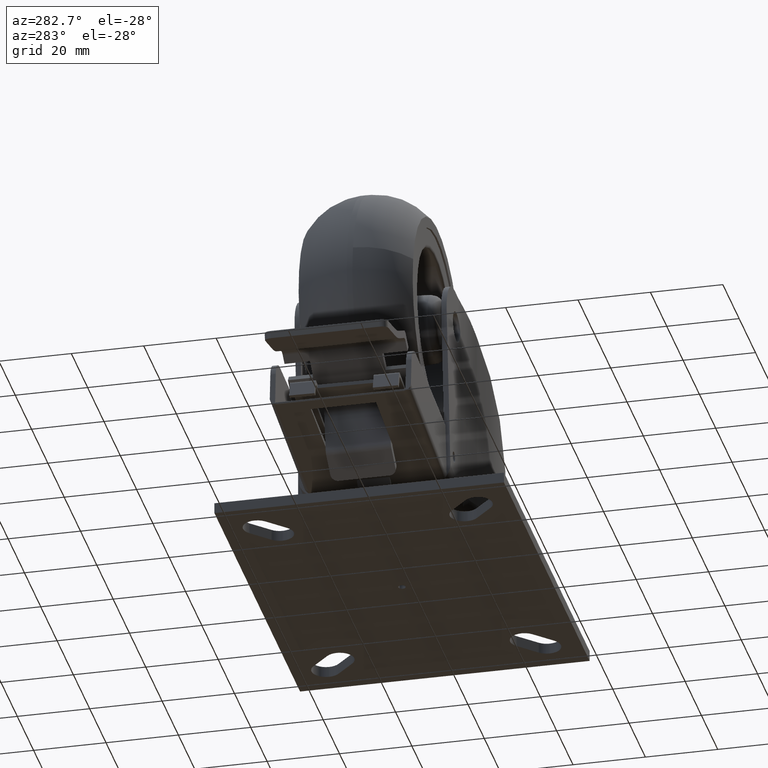
[diagram: clean part render]
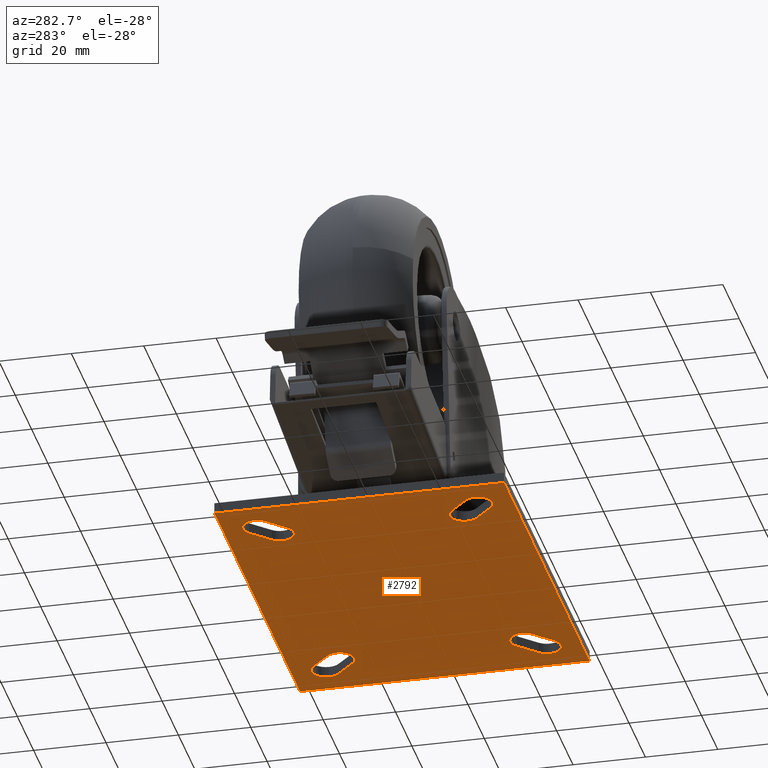
[diagram: same view with one face highlighted and labeled with its STEP entity id]
A machine part, auxiliary view. The second image highlights one B-rep face of the part: STEP entity #2792.
In plain terms, the highlighted planar face has unit normal (0, 0, -1).
Its self-contained STEP definition (entity closure, byte-faithful):
#2584 = EDGE_CURVE ( 'NONE', #2585, #2587, #7093, .T. ) ;
#2585 = VERTEX_POINT ( 'NONE', #7088 ) ;
#2587 = VERTEX_POINT ( 'NONE', #7087 ) ;
#2623 = EDGE_CURVE ( 'NONE', #2624, #2626, #7116, .T. ) ;
#2624 = VERTEX_POINT ( 'NONE', #7111 ) ;
#2626 = VERTEX_POINT ( 'NONE', #7110 ) ;
#2705 = EDGE_CURVE ( 'NONE', #2762, #2764, #7217, .T. ) ;
#2711 = EDGE_CURVE ( 'NONE', #2718, #2720, #7212, .T. ) ;
#2718 = VERTEX_POINT ( 'NONE', #7201 ) ;
#2720 = VERTEX_POINT ( 'NONE', #7200 ) ;
#2756 = EDGE_LOOP ( 'NONE', ( #2758, #2828, #2836, #2840, #2842 ) ) ;
#2758 = ORIENTED_EDGE ( 'NONE', *, *, #2973, .F. ) ;
#2762 = VERTEX_POINT ( 'NONE', #7236 ) ;
#2764 = VERTEX_POINT ( 'NONE', #7235 ) ;
#2792 = ADVANCED_FACE ( 'NONE', ( #7272, #7271, #7270, #7269, #7268, #7267 ), #7266, .T. ) ;
#2794 = EDGE_LOOP ( 'NONE', ( #2796, #2800 ) ) ;
#2796 = ORIENTED_EDGE ( 'NONE', *, *, #2798, .T. ) ;
#2798 = EDGE_CURVE ( 'NONE', #2587, #2585, #7257, .T. ) ;
#2800 = ORIENTED_EDGE ( 'NONE', *, *, #2584, .T. ) ;
#2804 = EDGE_CURVE ( 'NONE', #2806, #2808, #7320, .T. ) ;
#2806 = VERTEX_POINT ( 'NONE', #7315 ) ;
#2808 = VERTEX_POINT ( 'NONE', #7314 ) ;
#2828 = ORIENTED_EDGE ( 'NONE', *, *, #2829, .T. ) ;
#2829 = EDGE_CURVE ( 'NONE', #2977, #2831, #7297, .T. ) ;
#2831 = VERTEX_POINT ( 'NONE', #7293 ) ;
#2836 = ORIENTED_EDGE ( 'NONE', *, *, #2838, .F. ) ;
#2838 = EDGE_CURVE ( 'NONE', #2720, #2831, #7292, .T. ) ;
#2840 = ORIENTED_EDGE ( 'NONE', *, *, #2711, .F. ) ;
#2842 = ORIENTED_EDGE ( 'NONE', *, *, #2846, .T. ) ;
#2846 = EDGE_CURVE ( 'NONE', #2718, #2978, #7347, .T. ) ;
#2849 = EDGE_LOOP ( 'NONE', ( #2854, #2935, #2946, #2952, #2956 ) ) ;
#2854 = ORIENTED_EDGE ( 'NONE', *, *, #2858, .F. ) ;
#2858 = EDGE_CURVE ( 'NONE', #2925, #2929, #7336, .T. ) ;
#2862 = ORIENTED_EDGE ( 'NONE', *, *, #2863, .F. ) ;
#2863 = EDGE_CURVE ( 'NONE', #2866, #2868, #7331, .T. ) ;
#2866 = VERTEX_POINT ( 'NONE', #7326 ) ;
#2868 = VERTEX_POINT ( 'NONE', #7325 ) ;
#2873 = ORIENTED_EDGE ( 'NONE', *, *, #2875, .T. ) ;
#2875 = EDGE_CURVE ( 'NONE', #2866, #2877, #7324, .T. ) ;
#2877 = VERTEX_POINT ( 'NONE', #7378 ) ;
#2879 = ORIENTED_EDGE ( 'NONE', *, *, #2882, .F. ) ;
#2882 = EDGE_CURVE ( 'NONE', #2626, #2877, #7376, .T. ) ;
#2888 = ORIENTED_EDGE ( 'NONE', *, *, #2623, .F. ) ;
#2894 = ORIENTED_EDGE ( 'NONE', *, *, #2895, .T. ) ;
#2895 = EDGE_CURVE ( 'NONE', #2624, #2868, #7361, .T. ) ;
#2896 = VERTEX_POINT ( 'NONE', #7357 ) ;
#2899 = ORIENTED_EDGE ( 'NONE', *, *, #2902, .F. ) ;
#2902 = EDGE_CURVE ( 'NONE', #2764, #2896, #7356, .T. ) ;
#2906 = EDGE_LOOP ( 'NONE', ( #2909, #2991, #2997, #3003 ) ) ;
#2909 = ORIENTED_EDGE ( 'NONE', *, *, #2911, .T. ) ;
#2911 = EDGE_CURVE ( 'NONE', #2915, #2917, #7415, .T. ) ;
#2915 = VERTEX_POINT ( 'NONE', #7411 ) ;
#2917 = VERTEX_POINT ( 'NONE', #7410 ) ;
#2923 = VERTEX_POINT ( 'NONE', #7403 ) ;
#2925 = VERTEX_POINT ( 'NONE', #7402 ) ;
#2929 = VERTEX_POINT ( 'NONE', #7401 ) ;
#2935 = ORIENTED_EDGE ( 'NONE', *, *, #2937, .T. ) ;
#2937 = EDGE_CURVE ( 'NONE', #2925, #2942, #7399, .T. ) ;
#2942 = VERTEX_POINT ( 'NONE', #7395 ) ;
#2946 = ORIENTED_EDGE ( 'NONE', *, *, #2948, .F. ) ;
#2948 = EDGE_CURVE ( 'NONE', #2808, #2942, #7394, .T. ) ;
#2952 = ORIENTED_EDGE ( 'NONE', *, *, #2804, .F. ) ;
#2956 = ORIENTED_EDGE ( 'NONE', *, *, #2961, .T. ) ;
#2961 = EDGE_CURVE ( 'NONE', #2806, #2929, #7389, .T. ) ;
#2962 = EDGE_LOOP ( 'NONE', ( #2964, #2966, #3036, #3044, #2899 ) ) ;
#2964 = ORIENTED_EDGE ( 'NONE', *, *, #2705, .F. ) ;
#2966 = ORIENTED_EDGE ( 'NONE', *, *, #2967, .T. ) ;
#2967 = EDGE_CURVE ( 'NONE', #2762, #2970, #7385, .T. ) ;
#2970 = VERTEX_POINT ( 'NONE', #7445 ) ;
#2973 = EDGE_CURVE ( 'NONE', #2977, #2978, #7444, .T. ) ;
#2977 = VERTEX_POINT ( 'NONE', #7439 ) ;
#2978 = VERTEX_POINT ( 'NONE', #7438 ) ;
#2991 = ORIENTED_EDGE ( 'NONE', *, *, #2993, .T. ) ;
#2993 = EDGE_CURVE ( 'NONE', #2917, #2923, #7416, .T. ) ;
#2997 = ORIENTED_EDGE ( 'NONE', *, *, #2999, .T. ) ;
#2999 = EDGE_CURVE ( 'NONE', #2923, #3000, #7470, .T. ) ;
#3000 = VERTEX_POINT ( 'NONE', #7466 ) ;
#3003 = ORIENTED_EDGE ( 'NONE', *, *, #3006, .T. ) ;
#3006 = EDGE_CURVE ( 'NONE', #3000, #2915, #7461, .T. ) ;
#3036 = ORIENTED_EDGE ( 'NONE', *, *, #3038, .F. ) ;
#3038 = EDGE_CURVE ( 'NONE', #3039, #2970, #7499, .T. ) ;
#3039 = VERTEX_POINT ( 'NONE', #7494 ) ;
#3044 = ORIENTED_EDGE ( 'NONE', *, *, #3048, .T. ) ;
#3048 = EDGE_CURVE ( 'NONE', #3039, #2896, #7493, .T. ) ;
#6046 = EDGE_LOOP ( 'NONE', ( #2862, #2873, #2879, #2888, #2894 ) ) ;
#7087 = CARTESIAN_POINT ( 'NONE',  ( 53.50000000000000000, 40.00000000000000000, 0.0000000000000000000 ) ) ;
#7088 = CARTESIAN_POINT ( 'NONE',  ( 51.50000000000000000, 40.00000000000000000, 0.0000000000000000000 ) ) ;
#7089 = DIRECTION ( 'NONE',  ( 1.000000000000000000, 0.0000000000000000000, 0.0000000000000000000 ) ) ;
#7090 = DIRECTION ( 'NONE',  ( 0.0000000000000000000, 0.0000000000000000000, 1.000000000000000000 ) ) ;
#7091 = CARTESIAN_POINT ( 'NONE',  ( 52.50000000000000000, 40.00000000000000000, 0.0000000000000000000 ) ) ;
#7092 = AXIS2_PLACEMENT_3D ( 'NONE', #7091, #7090, #7089 ) ;
#7093 = CIRCLE ( 'NONE', #7092, 1.000000000000000900 ) ;
#7110 = CARTESIAN_POINT ( 'NONE',  ( 98.47487373399999900, 70.47487373400001300, 0.0000000000000000000 ) ) ;
#7111 = CARTESIAN_POINT ( 'NONE',  ( 91.64644660900000900, 73.30330085900000400, 0.0000000000000000000 ) ) ;
#7112 = DIRECTION ( 'NONE',  ( 1.000000000000000000, 0.0000000000000000000, 0.0000000000000000000 ) ) ;
#7113 = DIRECTION ( 'NONE',  ( -0.0000000000000000000, -0.0000000000000000000, -1.000000000000000000 ) ) ;
#7114 = CARTESIAN_POINT ( 'NONE',  ( 94.47487373399999900, 70.47487373400001300, 0.0000000000000000000 ) ) ;
#7115 = AXIS2_PLACEMENT_3D ( 'NONE', #7114, #7113, #7112 ) ;
#7116 = CIRCLE ( 'NONE', #7115, 4.000000000000003600 ) ;
#7200 = CARTESIAN_POINT ( 'NONE',  ( 19.47487373400000300, 65.52512626600000100, 0.0000000000000000000 ) ) ;
#7201 = CARTESIAN_POINT ( 'NONE',  ( 18.30330085900000400, 68.35355339100000500, 0.0000000000000000000 ) ) ;
#7209 = DIRECTION ( 'NONE',  ( 1.000000000000000000, 0.0000000000000000000, 0.0000000000000000000 ) ) ;
#7210 = DIRECTION ( 'NONE',  ( -0.0000000000000000000, 0.0000000000000000000, -1.000000000000000000 ) ) ;
#7211 = AXIS2_PLACEMENT_3D ( 'NONE', #7218, #7210, #7209 ) ;
#7212 = CIRCLE ( 'NONE', #7211, 4.000000000000003600 ) ;
#7213 = DIRECTION ( 'NONE',  ( 1.000000000000000000, 1.517883041479704900E-014, 0.0000000000000000000 ) ) ;
#7214 = DIRECTION ( 'NONE',  ( -0.0000000000000000000, -0.0000000000000000000, -1.000000000000000000 ) ) ;
#7215 = CARTESIAN_POINT ( 'NONE',  ( 94.47487373399999900, 9.525126266000000900, 0.0000000000000000000 ) ) ;
#7216 = AXIS2_PLACEMENT_3D ( 'NONE', #7215, #7214, #7213 ) ;
#7217 = CIRCLE ( 'NONE', #7216, 4.000000000000003600 ) ;
#7218 = CARTESIAN_POINT ( 'NONE',  ( 15.47487373399999900, 65.52512626600000100, 0.0000000000000000000 ) ) ;
#7235 = CARTESIAN_POINT ( 'NONE',  ( 98.47487373399999900, 9.525126266000000900, 0.0000000000000000000 ) ) ;
#7236 = CARTESIAN_POINT ( 'NONE',  ( 97.30330085899998900, 12.35355339100000400, 0.0000000000000000000 ) ) ;
#7253 = DIRECTION ( 'NONE',  ( 1.000000000000000000, 0.0000000000000000000, 0.0000000000000000000 ) ) ;
#7254 = DIRECTION ( 'NONE',  ( 0.0000000000000000000, 0.0000000000000000000, 1.000000000000000000 ) ) ;
#7255 = CARTESIAN_POINT ( 'NONE',  ( 52.50000000000000000, 40.00000000000000000, 0.0000000000000000000 ) ) ;
#7256 = AXIS2_PLACEMENT_3D ( 'NONE', #7255, #7254, #7253 ) ;
#7257 = CIRCLE ( 'NONE', #7256, 1.000000000000000900 ) ;
#7262 = DIRECTION ( 'NONE',  ( -1.000000000000000000, 0.0000000000000000000, 0.0000000000000000000 ) ) ;
#7263 = DIRECTION ( 'NONE',  ( 0.0000000000000000000, 0.0000000000000000000, -1.000000000000000000 ) ) ;
#7264 = CARTESIAN_POINT ( 'NONE',  ( 105.0000000000000000, 0.0000000000000000000, 0.0000000000000000000 ) ) ;
#7265 = AXIS2_PLACEMENT_3D ( 'NONE', #7264, #7263, #7262 ) ;
#7266 = PLANE ( 'NONE',  #7265 ) ;
#7267 = FACE_OUTER_BOUND ( 'NONE', #2906, .T. ) ;
#7268 = FACE_BOUND ( 'NONE', #2962, .T. ) ;
#7269 = FACE_BOUND ( 'NONE', #2849, .T. ) ;
#7270 = FACE_BOUND ( 'NONE', #2756, .T. ) ;
#7271 = FACE_BOUND ( 'NONE', #6046, .T. ) ;
#7272 = FACE_BOUND ( 'NONE', #2794, .T. ) ;
#7288 = DIRECTION ( 'NONE',  ( 1.000000000000000000, 0.0000000000000000000, 0.0000000000000000000 ) ) ;
#7289 = DIRECTION ( 'NONE',  ( -0.0000000000000000000, 0.0000000000000000000, -1.000000000000000000 ) ) ;
#7290 = CARTESIAN_POINT ( 'NONE',  ( 15.47487373399999900, 65.52512626600000100, 0.0000000000000000000 ) ) ;
#7291 = AXIS2_PLACEMENT_3D ( 'NONE', #7290, #7289, #7288 ) ;
#7292 = CIRCLE ( 'NONE', #7291, 4.000000000000003600 ) ;
#7293 = CARTESIAN_POINT ( 'NONE',  ( 12.64644660914494200, 62.69669914110886600, 0.0000000000000000000 ) ) ;
#7294 = DIRECTION ( 'NONE',  ( 0.7071067811865463500, -0.7071067811865487900, 0.0000000000000000000 ) ) ;
#7295 = VECTOR ( 'NONE', #7294, 1000.000000000000000 ) ;
#7296 = CARTESIAN_POINT ( 'NONE',  ( 10.17157287500000100, 65.17157287499999500, 0.0000000000000000000 ) ) ;
#7297 = LINE ( 'NONE', #7296, #7295 ) ;
#7314 = CARTESIAN_POINT ( 'NONE',  ( 19.47487373400000300, 14.47487373399999900, 0.0000000000000000000 ) ) ;
#7315 = CARTESIAN_POINT ( 'NONE',  ( 12.64644660900000200, 17.30330085900000000, 0.0000000000000000000 ) ) ;
#7316 = DIRECTION ( 'NONE',  ( 1.000000000000000000, 0.0000000000000000000, 0.0000000000000000000 ) ) ;
#7317 = DIRECTION ( 'NONE',  ( -0.0000000000000000000, 0.0000000000000000000, -1.000000000000000000 ) ) ;
#7318 = CARTESIAN_POINT ( 'NONE',  ( 15.47487373399999900, 14.47487373399999900, 0.0000000000000000000 ) ) ;
#7319 = AXIS2_PLACEMENT_3D ( 'NONE', #7318, #7317, #7316 ) ;
#7320 = CIRCLE ( 'NONE', #7319, 4.000000000000003600 ) ;
#7321 = DIRECTION ( 'NONE',  ( 0.7071067811865455700, 0.7071067811865495700, 0.0000000000000000000 ) ) ;
#7322 = VECTOR ( 'NONE', #7321, 1000.000000000000100 ) ;
#7323 = CARTESIAN_POINT ( 'NONE',  ( 94.82842712500000500, 65.17157287499999500, 0.0000000000000000000 ) ) ;
#7324 = LINE ( 'NONE', #7323, #7322 ) ;
#7325 = CARTESIAN_POINT ( 'NONE',  ( 86.69669914100001100, 68.35355339100000500, 0.0000000000000000000 ) ) ;
#7326 = CARTESIAN_POINT ( 'NONE',  ( 92.35355339100002000, 62.69669914099998200, 0.0000000000000000000 ) ) ;
#7327 = DIRECTION ( 'NONE',  ( 1.000000000000000000, 0.0000000000000000000, 0.0000000000000000000 ) ) ;
#7328 = DIRECTION ( 'NONE',  ( -0.0000000000000000000, -0.0000000000000000000, -1.000000000000000000 ) ) ;
#7329 = CARTESIAN_POINT ( 'NONE',  ( 89.52512626600000100, 65.52512626600000100, 0.0000000000000000000 ) ) ;
#7330 = AXIS2_PLACEMENT_3D ( 'NONE', #7329, #7328, #7327 ) ;
#7331 = CIRCLE ( 'NONE', #7330, 4.000000000000003600 ) ;
#7332 = DIRECTION ( 'NONE',  ( 1.000000000000000000, 0.0000000000000000000, 0.0000000000000000000 ) ) ;
#7333 = DIRECTION ( 'NONE',  ( -0.0000000000000000000, -0.0000000000000000000, -1.000000000000000000 ) ) ;
#7334 = CARTESIAN_POINT ( 'NONE',  ( 10.52512626600000100, 9.525126266000000900, 0.0000000000000000000 ) ) ;
#7335 = AXIS2_PLACEMENT_3D ( 'NONE', #7334, #7333, #7332 ) ;
#7336 = CIRCLE ( 'NONE', #7335, 4.000000000000000000 ) ;
#7344 = DIRECTION ( 'NONE',  ( -0.7071067811865482400, 0.7071067811865469100, 0.0000000000000000000 ) ) ;
#7345 = VECTOR ( 'NONE', #7344, 999.9999999999998900 ) ;
#7346 = CARTESIAN_POINT ( 'NONE',  ( 15.82842712500000300, 70.82842712500000500, 0.0000000000000000000 ) ) ;
#7347 = LINE ( 'NONE', #7346, #7345 ) ;
#7352 = DIRECTION ( 'NONE',  ( 1.000000000000000000, 0.0000000000000000000, 0.0000000000000000000 ) ) ;
#7353 = DIRECTION ( 'NONE',  ( -0.0000000000000000000, -0.0000000000000000000, -1.000000000000000000 ) ) ;
#7354 = CARTESIAN_POINT ( 'NONE',  ( 94.47487373399999900, 9.525126266000000900, 0.0000000000000000000 ) ) ;
#7355 = AXIS2_PLACEMENT_3D ( 'NONE', #7354, #7353, #7352 ) ;
#7356 = CIRCLE ( 'NONE', #7355, 4.000000000000003600 ) ;
#7357 = CARTESIAN_POINT ( 'NONE',  ( 91.64644660900000900, 6.696699141000001600, 0.0000000000000000000 ) ) ;
#7358 = DIRECTION ( 'NONE',  ( -0.7071067811865485700, -0.7071067811865465700, 0.0000000000000000000 ) ) ;
#7359 = VECTOR ( 'NONE', #7358, 1000.000000000000000 ) ;
#7360 = CARTESIAN_POINT ( 'NONE',  ( 89.17157287500001000, 70.82842712500000500, 0.0000000000000000000 ) ) ;
#7361 = LINE ( 'NONE', #7360, #7359 ) ;
#7372 = DIRECTION ( 'NONE',  ( 1.000000000000000000, 0.0000000000000000000, 0.0000000000000000000 ) ) ;
#7373 = DIRECTION ( 'NONE',  ( -0.0000000000000000000, -0.0000000000000000000, -1.000000000000000000 ) ) ;
#7374 = CARTESIAN_POINT ( 'NONE',  ( 94.47487373399999900, 70.47487373400001300, 0.0000000000000000000 ) ) ;
#7375 = AXIS2_PLACEMENT_3D ( 'NONE', #7374, #7373, #7372 ) ;
#7376 = CIRCLE ( 'NONE', #7375, 4.000000000000003600 ) ;
#7378 = CARTESIAN_POINT ( 'NONE',  ( 97.30330085918120600, 67.64644660943501700, 0.0000000000000000000 ) ) ;
#7383 = VECTOR ( 'NONE', #7446, 1000.000000000000000 ) ;
#7384 = CARTESIAN_POINT ( 'NONE',  ( 94.82842712500000500, 14.82842712500000100, 0.0000000000000000000 ) ) ;
#7385 = LINE ( 'NONE', #7384, #7383 ) ;
#7386 = DIRECTION ( 'NONE',  ( -0.7071067811865479100, -0.7071067811865472400, 0.0000000000000000000 ) ) ;
#7387 = VECTOR ( 'NONE', #7386, 999.9999999999998900 ) ;
#7388 = CARTESIAN_POINT ( 'NONE',  ( 10.17157287500000100, 14.82842712500000100, 0.0000000000000000000 ) ) ;
#7389 = LINE ( 'NONE', #7388, #7387 ) ;
#7390 = DIRECTION ( 'NONE',  ( 1.000000000000000000, 0.0000000000000000000, 0.0000000000000000000 ) ) ;
#7391 = DIRECTION ( 'NONE',  ( -0.0000000000000000000, 0.0000000000000000000, -1.000000000000000000 ) ) ;
#7392 = CARTESIAN_POINT ( 'NONE',  ( 15.47487373399999900, 14.47487373399999900, 0.0000000000000000000 ) ) ;
#7393 = AXIS2_PLACEMENT_3D ( 'NONE', #7392, #7391, #7390 ) ;
#7394 = CIRCLE ( 'NONE', #7393, 4.000000000000003600 ) ;
#7395 = CARTESIAN_POINT ( 'NONE',  ( 18.30330085918119900, 11.64644660943500500, 0.0000000000000000000 ) ) ;
#7396 = DIRECTION ( 'NONE',  ( 0.7071067811865474600, 0.7071067811865475700, 0.0000000000000000000 ) ) ;
#7397 = VECTOR ( 'NONE', #7396, 1000.000000000000000 ) ;
#7398 = CARTESIAN_POINT ( 'NONE',  ( 15.82842712500000300, 9.171572875000000700, 0.0000000000000000000 ) ) ;
#7399 = LINE ( 'NONE', #7398, #7397 ) ;
#7401 = CARTESIAN_POINT ( 'NONE',  ( 7.696699141000000700, 12.35355339100000400, 0.0000000000000000000 ) ) ;
#7402 = CARTESIAN_POINT ( 'NONE',  ( 13.35355339100000400, 6.696699141000001600, -1.084202172485504400E-016 ) ) ;
#7403 = CARTESIAN_POINT ( 'NONE',  ( 0.0000000000000000000, 0.0000000000000000000, 0.0000000000000000000 ) ) ;
#7410 = CARTESIAN_POINT ( 'NONE',  ( 105.0000000000000000, 0.0000000000000000000, 0.0000000000000000000 ) ) ;
#7411 = CARTESIAN_POINT ( 'NONE',  ( 105.0000000000000000, 80.00000000000000000, 0.0000000000000000000 ) ) ;
#7412 = DIRECTION ( 'NONE',  ( -0.0000000000000000000, -1.000000000000000000, -0.0000000000000000000 ) ) ;
#7413 = VECTOR ( 'NONE', #7412, 1000.000000000000000 ) ;
#7414 = CARTESIAN_POINT ( 'NONE',  ( 105.0000000000000000, 40.00000000000000000, 0.0000000000000000000 ) ) ;
#7415 = LINE ( 'NONE', #7414, #7413 ) ;
#7416 = LINE ( 'NONE', #7477, #7476 ) ;
#7438 = CARTESIAN_POINT ( 'NONE',  ( 13.35355339100000000, 73.30330085900000400, 0.0000000000000000000 ) ) ;
#7439 = CARTESIAN_POINT ( 'NONE',  ( 7.696699140999999900, 67.64644660900002300, 0.0000000000000000000 ) ) ;
#7440 = DIRECTION ( 'NONE',  ( 1.000000000000000000, 0.0000000000000000000, 0.0000000000000000000 ) ) ;
#7441 = DIRECTION ( 'NONE',  ( -0.0000000000000000000, -0.0000000000000000000, -1.000000000000000000 ) ) ;
#7442 = CARTESIAN_POINT ( 'NONE',  ( 10.52512626600000100, 70.47487373400001300, 0.0000000000000000000 ) ) ;
#7443 = AXIS2_PLACEMENT_3D ( 'NONE', #7442, #7441, #7440 ) ;
#7444 = CIRCLE ( 'NONE', #7443, 4.000000000000000000 ) ;
#7445 = CARTESIAN_POINT ( 'NONE',  ( 92.35355339143517000, 17.30330085831102200, 0.0000000000000000000 ) ) ;
#7446 = DIRECTION ( 'NONE',  ( -0.7071067811865470200, 0.7071067811865480200, 0.0000000000000000000 ) ) ;
#7458 = DIRECTION ( 'NONE',  ( 1.000000000000000000, 0.0000000000000000000, 0.0000000000000000000 ) ) ;
#7459 = VECTOR ( 'NONE', #7458, 1000.000000000000000 ) ;
#7460 = CARTESIAN_POINT ( 'NONE',  ( 52.50000000000000000, 80.00000000000000000, 0.0000000000000000000 ) ) ;
#7461 = LINE ( 'NONE', #7460, #7459 ) ;
#7466 = CARTESIAN_POINT ( 'NONE',  ( 0.0000000000000000000, 80.00000000000000000, 0.0000000000000000000 ) ) ;
#7467 = DIRECTION ( 'NONE',  ( 0.0000000000000000000, 1.000000000000000000, 0.0000000000000000000 ) ) ;
#7468 = VECTOR ( 'NONE', #7467, 1000.000000000000000 ) ;
#7469 = CARTESIAN_POINT ( 'NONE',  ( 0.0000000000000000000, 40.00000000000000000, 0.0000000000000000000 ) ) ;
#7470 = LINE ( 'NONE', #7469, #7468 ) ;
#7475 = DIRECTION ( 'NONE',  ( -1.000000000000000000, -0.0000000000000000000, -0.0000000000000000000 ) ) ;
#7476 = VECTOR ( 'NONE', #7475, 1000.000000000000000 ) ;
#7477 = CARTESIAN_POINT ( 'NONE',  ( 52.50000000000000000, 0.0000000000000000000, 0.0000000000000000000 ) ) ;
#7490 = DIRECTION ( 'NONE',  ( 0.7071067811865479100, -0.7071067811865472400, 0.0000000000000000000 ) ) ;
#7491 = VECTOR ( 'NONE', #7490, 1000.000000000000000 ) ;
#7492 = CARTESIAN_POINT ( 'NONE',  ( 89.17157287500001000, 9.171572875000000700, 0.0000000000000000000 ) ) ;
#7493 = LINE ( 'NONE', #7492, #7491 ) ;
#7494 = CARTESIAN_POINT ( 'NONE',  ( 86.69669914100001100, 11.64644660900000200, 1.084202172485504400E-016 ) ) ;
#7495 = DIRECTION ( 'NONE',  ( 1.000000000000000000, 8.673617379884027600E-016, 0.0000000000000000000 ) ) ;
#7496 = DIRECTION ( 'NONE',  ( -0.0000000000000000000, -0.0000000000000000000, -1.000000000000000000 ) ) ;
#7497 = CARTESIAN_POINT ( 'NONE',  ( 89.52512626600000100, 14.47487373399999900, 0.0000000000000000000 ) ) ;
#7498 = AXIS2_PLACEMENT_3D ( 'NONE', #7497, #7496, #7495 ) ;
#7499 = CIRCLE ( 'NONE', #7498, 4.000000000000003600 ) ;